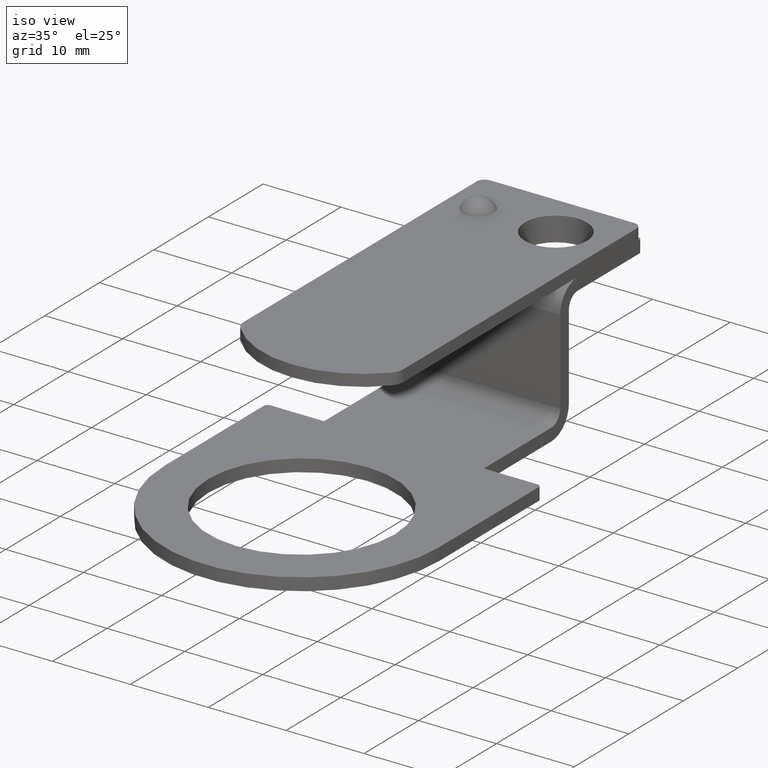
[diagram: clean part render]
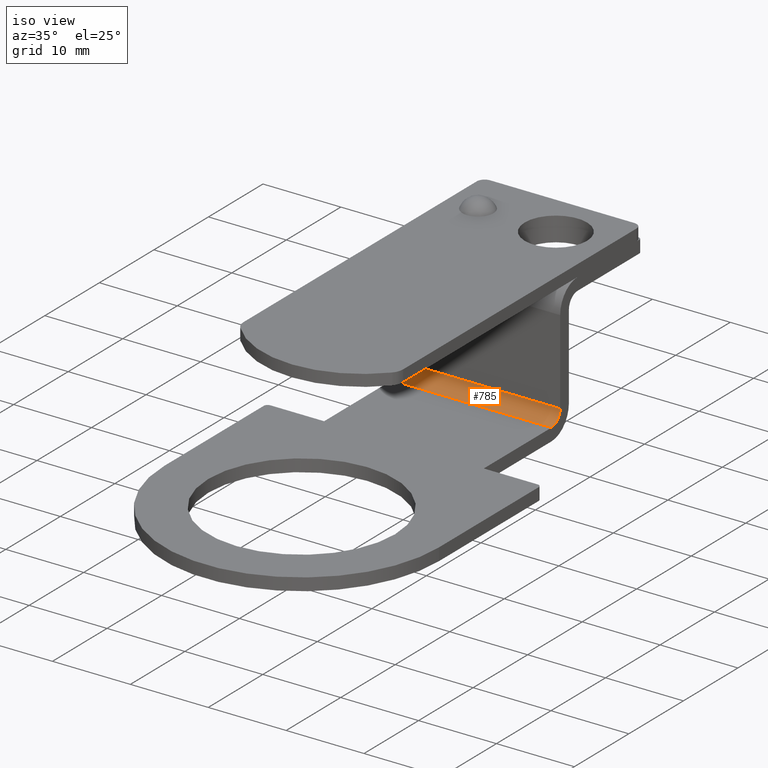
[diagram: same view with one face highlighted and labeled with its STEP entity id]
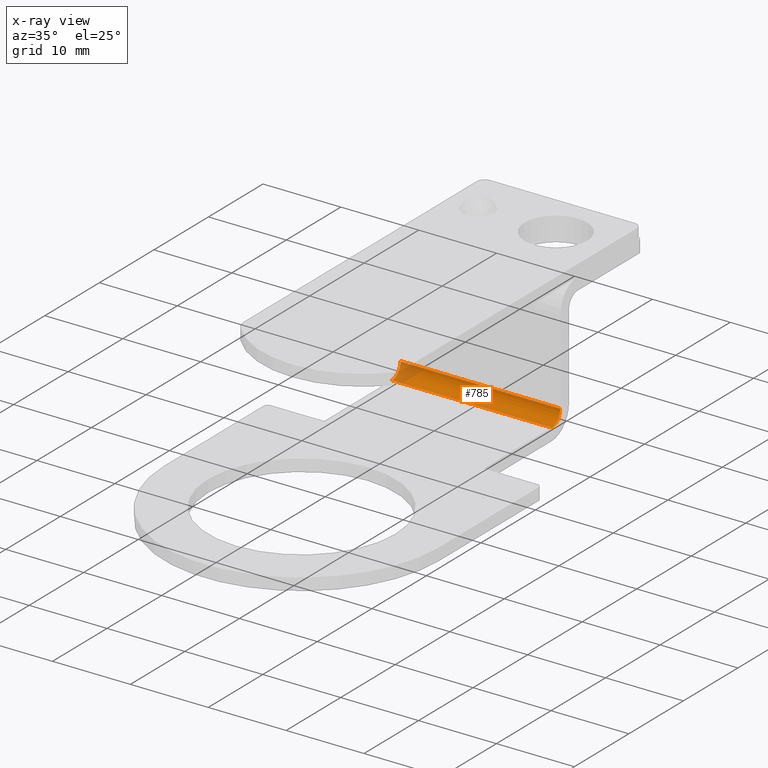
[diagram: x-ray of the same camera — body ghosted, the highlighted face saturated]
A machine part, iso view. The second image highlights one B-rep face of the part: STEP entity #785.
The next image is the same camera in x-ray: the body ghosted, the highlighted face saturated — about 10% of this face is hidden behind the body in this view.
In plain terms, the highlighted cylindrical surface (edge-blend (fillet) strip) has radius 1.6 mm, axis along (1, 0, 0).
Its self-contained STEP definition (entity closure, byte-faithful):
#250=CARTESIAN_POINT('',(13.026965155120047,12.891234150719995,1.600000000000000));
#251=VERTEX_POINT('',#250);
#258=CARTESIAN_POINT('',(-7.473034844879956,12.891234150719995,1.600000000000000));
#259=VERTEX_POINT('',#258);
#260=CARTESIAN_POINT('',(13.026965155120047,12.891234150719995,1.600000000000000));
#261=DIRECTION('',(-1.0,0.0,0.0));
#262=VECTOR('',#261,20.500000000000004);
#263=LINE('',#260,#262);
#264=EDGE_CURVE('',#251,#259,#263,.T.);
#482=CARTESIAN_POINT('',(13.026965155120047,14.491234150719999,3.199999999999998));
#483=VERTEX_POINT('',#482);
#490=CARTESIAN_POINT('',(13.026965155120047,12.891234150719997,3.200000000000001));
#491=DIRECTION('',(1.0,0.0,0.0));
#492=DIRECTION('',(0.0,0.0,-1.0));
#493=AXIS2_PLACEMENT_3D('',#490,#491,#492);
#494=CIRCLE('',#493,1.600000000000001);
#495=EDGE_CURVE('',#251,#483,#494,.T.);
#678=CARTESIAN_POINT('',(-7.473034844879956,14.491234150719999,3.200000000000012));
#679=VERTEX_POINT('',#678);
#680=CARTESIAN_POINT('',(-7.473034844879956,12.891234150719997,3.200000000000001));
#681=DIRECTION('',(1.0,0.0,0.0));
#682=DIRECTION('',(0.0,0.0,-1.0));
#683=AXIS2_PLACEMENT_3D('',#680,#681,#682);
#684=CIRCLE('',#683,1.600000000000001);
#685=EDGE_CURVE('',#259,#679,#684,.T.);
#747=CARTESIAN_POINT('',(13.026965155120047,14.491234150719999,3.199999999999998));
#748=DIRECTION('',(-1.0,0.0,0.0));
#749=VECTOR('',#748,20.500000000000004);
#750=LINE('',#747,#749);
#751=EDGE_CURVE('',#483,#679,#750,.T.);
#774=CARTESIAN_POINT('',(2.776965155120046,12.891234150719997,3.200000000000001));
#775=DIRECTION('',(1.0,0.0,0.0));
#776=DIRECTION('',(0.0,0.0,-1.0));
#777=AXIS2_PLACEMENT_3D('',#774,#775,#776);
#778=CYLINDRICAL_SURFACE('',#777,1.600000000000001);
#779=ORIENTED_EDGE('',*,*,#751,.T.);
#780=ORIENTED_EDGE('',*,*,#685,.F.);
#781=ORIENTED_EDGE('',*,*,#264,.F.);
#782=ORIENTED_EDGE('',*,*,#495,.T.);
#783=EDGE_LOOP('',(#779,#780,#781,#782));
#784=FACE_OUTER_BOUND('',#783,.T.);
#785=ADVANCED_FACE('',(#784),#778,.F.);